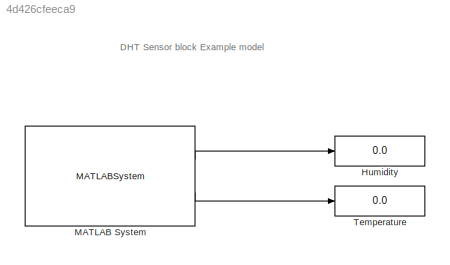
MODEL slx_4d426cfeeca9
KIND model
CONFIG AbsTol = auto
CONFIG EnableMultiTasking = on
CONFIG FixedStep = 0.001
CONFIG MaxStep = auto
CONFIG MinStep = auto
CONFIG RelTol = 1e-3
CONFIG SampleTimeConstraint = Unconstrained
CONFIG Solver = FixedStepDiscrete
CONFIG SolverName = FixedStepDiscrete
CONFIG StartTime = 0.0
CONFIG StopTime = 20
BLOCK [Display] Humidity
  Decimation = 1
  Ports = [1]
BLOCK [MATLABSystem] MATLAB System
  F = off
  MaskDisplay = image('DHT.jpg');\nport_label('output',1,'Humidity');\nport_label('output',2,'Temperature');
  MaskType = DHT
  Pin = 5
  Ports = [0, 2]
  StringChoice = DHT11
  System = DHT
BLOCK [Display] Temperature
  Decimation = 1
  Ports = [1]
ANNOTATION (root): DHT Sensor block Example model
LINE MATLAB System:1 -> Humidity:1
LINE MATLAB System:2 -> Temperature:1
